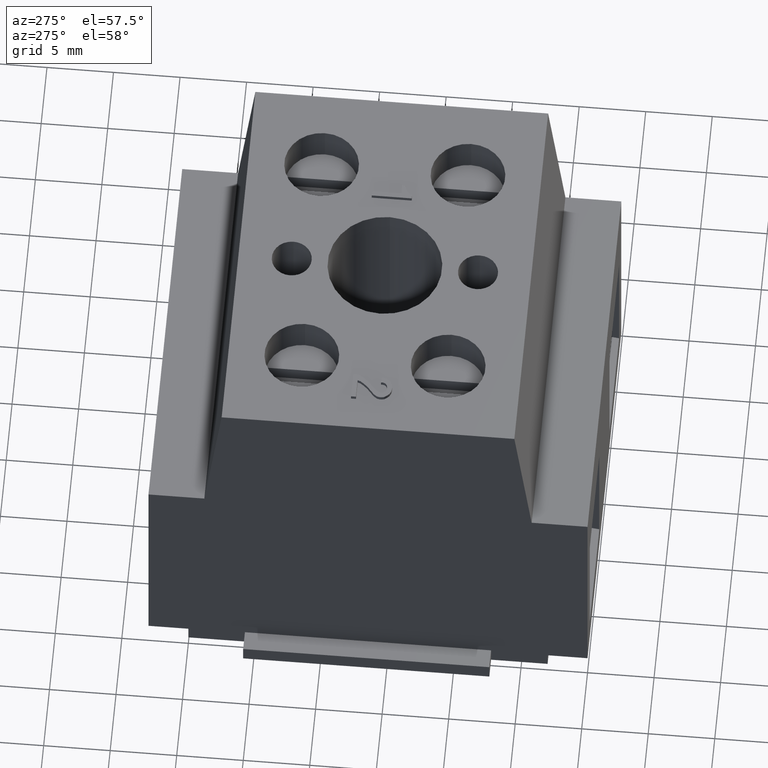
[diagram: clean part render]
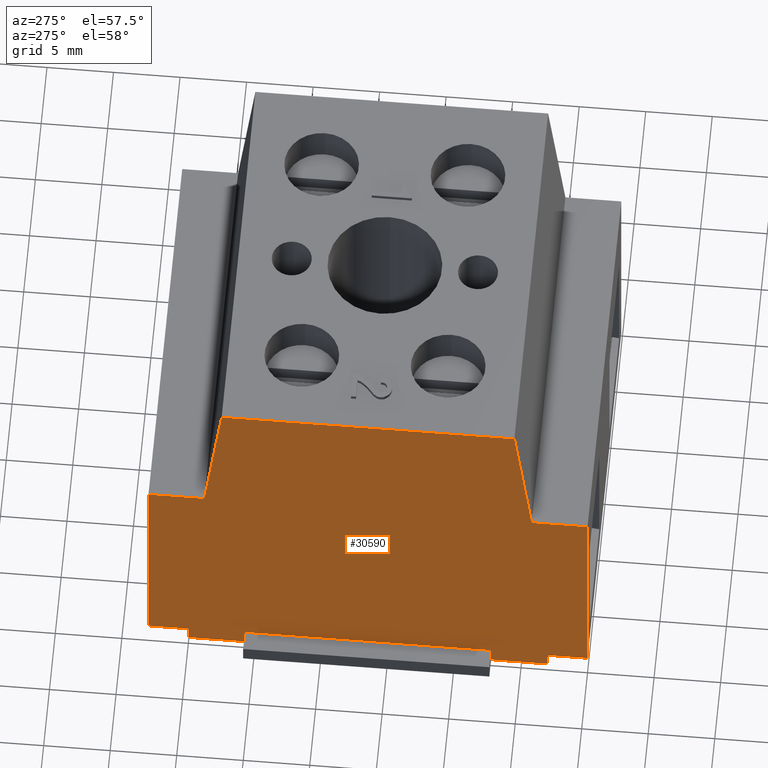
[diagram: same view with one face highlighted and labeled with its STEP entity id]
A machine part, auxiliary view. The second image highlights one B-rep face of the part: STEP entity #30590.
In plain terms, the highlighted planar face has unit normal (1, 0, 0).
Its self-contained STEP definition (entity closure, byte-faithful):
#5870=CARTESIAN_POINT('',(70.7713182031141,-4.41587903044529,29.));
#5880=DIRECTION('',(0.,-1.,0.));
#5890=VECTOR('',#5880,1.);
#5900=LINE('',#5870,#5890);
#5910=CARTESIAN_POINT('',(70.7713182031141,6.58412096955471,29.));
#5920=VERTEX_POINT('',#5910);
#5930=CARTESIAN_POINT('',(70.7713182031141,-15.4158790304453,29.));
#5940=VERTEX_POINT('',#5930);
#5950=EDGE_CURVE('',#5920,#5940,#5900,.T.);
#6340=CARTESIAN_POINT('',(39.7713182031141,-4.41587903044529,29.));
#6350=DIRECTION('',(0.,1.,0.));
#6360=VECTOR('',#6350,1.);
#6370=LINE('',#6340,#6360);
#6380=CARTESIAN_POINT('',(39.7713182031141,4.83412096955472,29.));
#6390=VERTEX_POINT('',#6380);
#6400=CARTESIAN_POINT('',(39.7713182031141,9.08412096955471,29.));
#6410=VERTEX_POINT('',#6400);
#6420=EDGE_CURVE('',#6390,#6410,#6370,.T.);
#6640=CARTESIAN_POINT('',(39.7713182031141,-13.6658790304453,29.));
#6650=VERTEX_POINT('',#6640);
#6680=CARTESIAN_POINT('',(39.7713182031141,-17.9158790304453,29.));
#6690=VERTEX_POINT('',#6680);
#6700=EDGE_CURVE('',#6690,#6650,#6370,.T.);
#24560=CARTESIAN_POINT('',(58.3213182031141,7.99151227390254,29.));
#24570=DIRECTION('',(0.993671178023366,-0.112328046211337,0.));
#24580=VECTOR('',#24570,1.);
#24590=LINE('',#24560,#24580);
#24600=CARTESIAN_POINT('',(59.2713182031141,7.88412096955472,29.));
#24610=VERTEX_POINT('',#24600);
#24620=EDGE_CURVE('',#24610,#5920,#24590,.T.);
#24870=CARTESIAN_POINT('',(59.2713182031141,-4.41587903044529,29.));
#24880=DIRECTION('',(0.,-1.,0.));
#24890=VECTOR('',#24880,1.);
#24900=LINE('',#24870,#24890);
#24910=CARTESIAN_POINT('',(59.2713182031141,12.0841209695547,29.));
#24920=VERTEX_POINT('',#24910);
#24930=EDGE_CURVE('',#24920,#24610,#24900,.T.);
#25580=CARTESIAN_POINT('',(58.3213182031141,12.0841209695547,29.));
#25590=DIRECTION('',(1.,0.,0.));
#25600=VECTOR('',#25590,1.);
#25610=LINE('',#25580,#25600);
#25620=CARTESIAN_POINT('',(40.9713182031141,12.0841209695547,29.));
#25630=VERTEX_POINT('',#25620);
#25640=EDGE_CURVE('',#25630,#24920,#25610,.T.);
#25890=CARTESIAN_POINT('',(40.9713182031141,-4.41587903044529,29.));
#25900=DIRECTION('',(0.,1.,0.));
#25910=VECTOR('',#25900,1.);
#25920=LINE('',#25890,#25910);
#25930=CARTESIAN_POINT('',(40.9713182031141,9.08412096955471,29.));
#25940=VERTEX_POINT('',#25930);
#25950=EDGE_CURVE('',#25940,#25630,#25920,.T.);
#26200=CARTESIAN_POINT('',(58.3213182031141,9.08412096955471,29.));
#26210=DIRECTION('',(1.,0.,0.));
#26220=VECTOR('',#26210,1.);
#26230=LINE('',#26200,#26220);
#26240=EDGE_CURVE('',#6410,#25940,#26230,.T.);
#26680=CARTESIAN_POINT('',(58.3213182031141,-17.9158790304453,29.));
#26690=DIRECTION('',(-1.,0.,0.));
#26700=VECTOR('',#26690,1.);
#26710=LINE('',#26680,#26700);
#26720=CARTESIAN_POINT('',(40.9713182031141,-17.9158790304453,29.));
#26730=VERTEX_POINT('',#26720);
#26740=EDGE_CURVE('',#26730,#6690,#26710,.T.);
#26990=CARTESIAN_POINT('',(40.9713182031141,-4.41587903044529,29.));
#27000=DIRECTION('',(0.,1.,0.));
#27010=VECTOR('',#27000,1.);
#27020=LINE('',#26990,#27010);
#27030=CARTESIAN_POINT('',(40.9713182031141,-20.9158790304453,29.));
#27040=VERTEX_POINT('',#27030);
#27050=EDGE_CURVE('',#27040,#26730,#27020,.T.);
#27700=CARTESIAN_POINT('',(58.3213182031141,-20.9158790304453,29.));
#27710=DIRECTION('',(-1.,0.,0.));
#27720=VECTOR('',#27710,1.);
#27730=LINE('',#27700,#27720);
#27740=CARTESIAN_POINT('',(59.2713182031141,-20.9158790304453,29.));
#27750=VERTEX_POINT('',#27740);
#27760=EDGE_CURVE('',#27750,#27040,#27730,.T.);
#28010=CARTESIAN_POINT('',(59.2713182031141,-4.41587903044529,29.));
#28020=DIRECTION('',(0.,-1.,0.));
#28030=VECTOR('',#28020,1.);
#28040=LINE('',#28010,#28030);
#28050=CARTESIAN_POINT('',(59.2713182031141,-16.7158790304453,29.));
#28060=VERTEX_POINT('',#28050);
#28070=EDGE_CURVE('',#28060,#27750,#28040,.T.);
#28320=CARTESIAN_POINT('',(58.3213182031141,-16.8232703347931,29.));
#28330=DIRECTION('',(-0.993671178023366,-0.112328046211337,0.));
#28340=VECTOR('',#28330,1.);
#28350=LINE('',#28320,#28340);
#28360=EDGE_CURVE('',#5940,#28060,#28350,.T.);
#30170=CARTESIAN_POINT('',(53.2713182031141,-20.9158790304453,29.));
#30180=DIRECTION('',(0.,0.,-1.));
#30190=DIRECTION('',(0.,1.,0.));
#30200=AXIS2_PLACEMENT_3D('',#30170,#30180,#30190);
#30210=PLANE('',#30200);
#30220=ORIENTED_EDGE('',*,*,#27050,.F.);
#30230=ORIENTED_EDGE('',*,*,#26740,.F.);
#30240=ORIENTED_EDGE('',*,*,#6700,.F.);
#30250=CARTESIAN_POINT('',(58.3213182031141,-13.6658790304453,29.));
#30260=DIRECTION('',(1.,0.,0.));
#30270=VECTOR('',#30260,1.);
#30280=LINE('',#30250,#30270);
#30290=CARTESIAN_POINT('',(41.0713182031141,-13.6658790304453,29.));
#30300=VERTEX_POINT('',#30290);
#30310=EDGE_CURVE('',#6650,#30300,#30280,.T.);
#30320=ORIENTED_EDGE('',*,*,#30310,.F.);
#30330=CARTESIAN_POINT('',(41.0713182031141,-4.41587903044529,29.));
#30340=DIRECTION('',(0.,1.,0.));
#30350=VECTOR('',#30340,1.);
#30360=LINE('',#30330,#30350);
#30370=CARTESIAN_POINT('',(41.0713182031141,4.83412096955472,29.));
#30380=VERTEX_POINT('',#30370);
#30390=EDGE_CURVE('',#30300,#30380,#30360,.T.);
#30400=ORIENTED_EDGE('',*,*,#30390,.F.);
#30410=CARTESIAN_POINT('',(58.3213182031141,4.83412096955472,29.));
#30420=DIRECTION('',(-1.,0.,0.));
#30430=VECTOR('',#30420,1.);
#30440=LINE('',#30410,#30430);
#30450=EDGE_CURVE('',#30380,#6390,#30440,.T.);
#30460=ORIENTED_EDGE('',*,*,#30450,.F.);
#30470=ORIENTED_EDGE('',*,*,#6420,.F.);
#30480=ORIENTED_EDGE('',*,*,#26240,.F.);
#30490=ORIENTED_EDGE('',*,*,#25950,.F.);
#30500=ORIENTED_EDGE('',*,*,#25640,.F.);
#30510=ORIENTED_EDGE('',*,*,#24930,.F.);
#30520=ORIENTED_EDGE('',*,*,#24620,.F.);
#30530=ORIENTED_EDGE('',*,*,#5950,.F.);
#30540=ORIENTED_EDGE('',*,*,#28360,.F.);
#30550=ORIENTED_EDGE('',*,*,#28070,.F.);
#30560=ORIENTED_EDGE('',*,*,#27760,.F.);
#30570=EDGE_LOOP('',(#30560,#30550,#30540,#30530,#30520,#30510,#30500,
#30490,#30480,#30470,#30460,#30400,#30320,#30240,#30230,#30220));
#30580=FACE_OUTER_BOUND('',#30570,.T.);
#30590=ADVANCED_FACE('',(#30580),#30210,.F.);